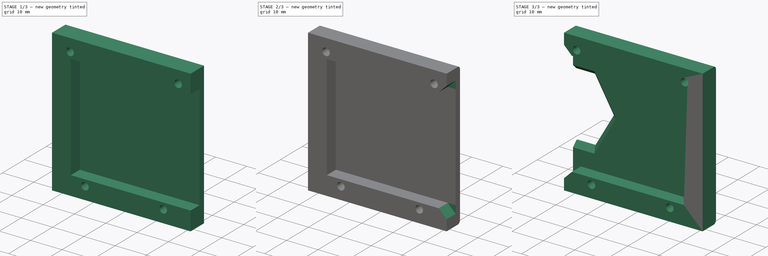
[diagram: build sequence overview — one tinted view per stage of 3, left to right]
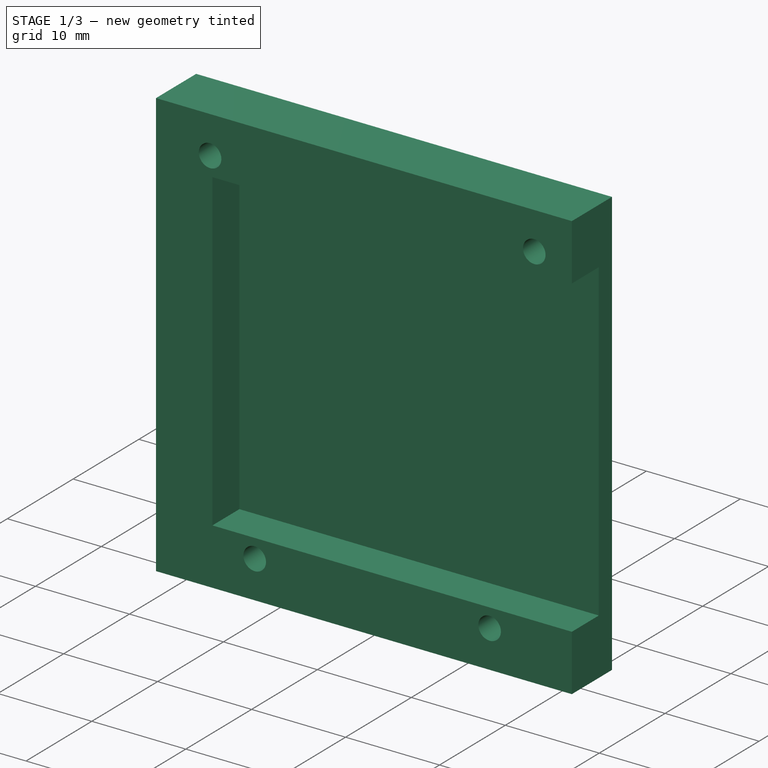
[diagram: stage 1 of 3 — iso view after this stage's code; geometry added in this stage tinted green]
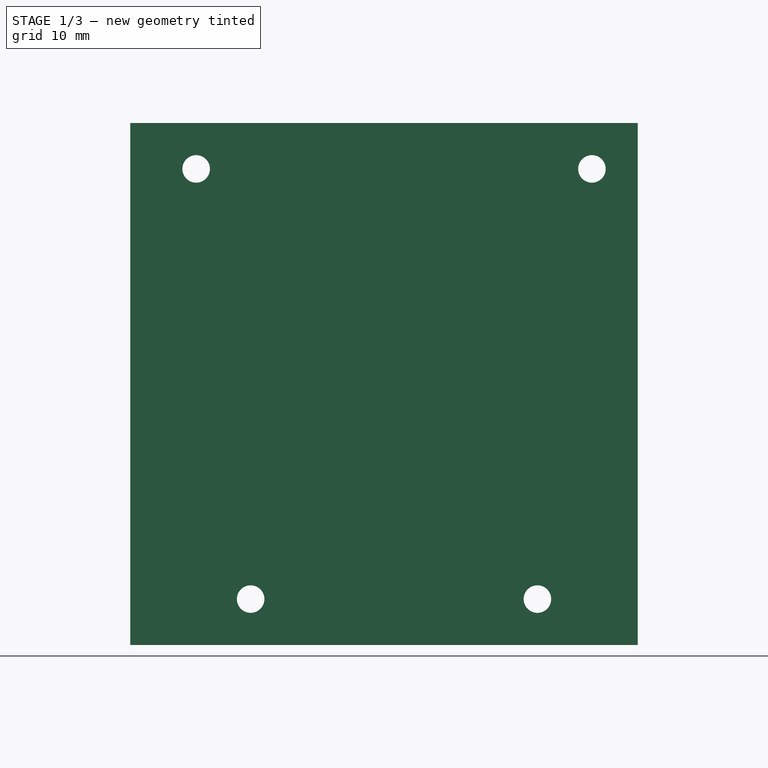
[diagram: stage 1 of 3 — front view after this stage's code; geometry added in this stage tinted green]
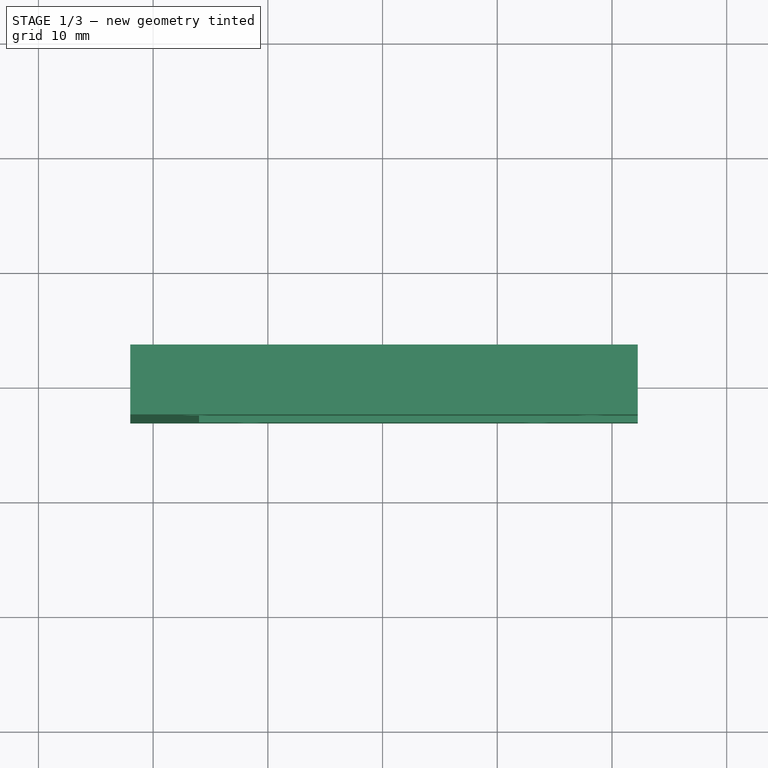
[diagram: stage 1 of 3 — top view after this stage's code; geometry added in this stage tinted green]
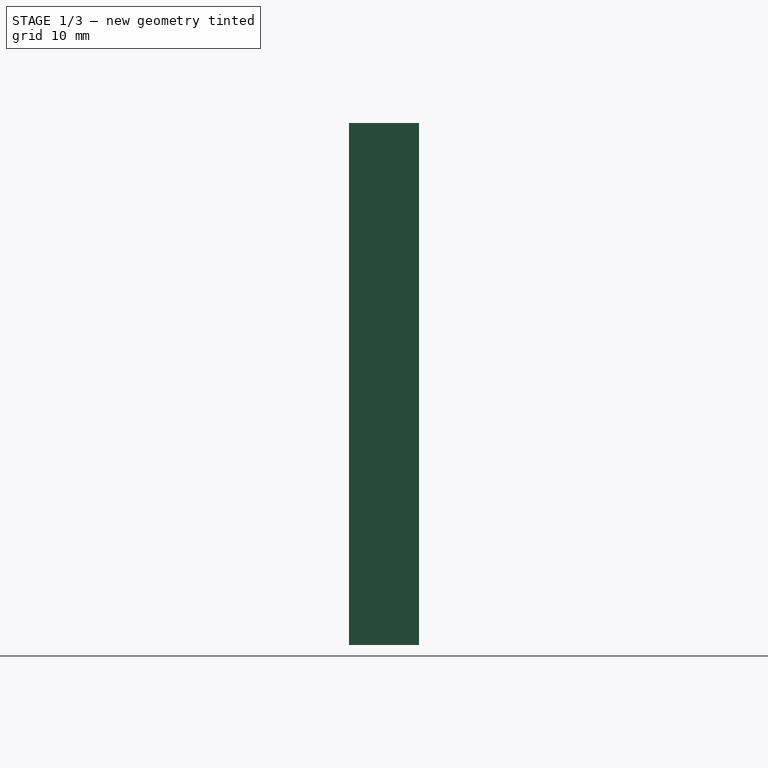
[diagram: stage 1 of 3 — right view after this stage's code; geometry added in this stage tinted green]
FCSTD DOCUMENT  (FreeCAD 1.0R39319 (Git))
Label: token_pocket
License: All rights reserved
LicenseURL: http://en.wikipedia.org/wiki/All_rights_reserved
objects: Sketcher::SketchObject×4, PartDesign::Pad×2, PartDesign::Chamfer×2, PartDesign::Hole×1, PartDesign::Fillet×1, PartDesign::Pocket×1, PartDesign::Body×1, App::Part×1, Part::Mirroring×1, Measure::MeasureDistance×1, App::DocumentObjectGroup×1
note: 31 computed .brp shape members not serialized (recipe doc carries the construction recipe); baked Part::Feature solids carry a one-line shape summary decoded from their .brp

FEATURE [Sketcher::SketchObject] Sketch009
  ArcFitTolerance = 1e-06
  FullyConstrained = true
  MakeInternals = false
  MapMode = 5
  Placement = pos=(0,1,0) rot=(0,0.707107,-0.707107;3.14159rad)
  sketch-geometry (8):
    g0: Circle [constr] CenterX=-33.5 CenterY=54 CenterZ=0 NormalX=0 NormalY=0 NormalZ=1 AngleXU=0 Radius=1
    g1: Circle [constr] CenterX=-8.5 CenterY=54 CenterZ=0 NormalX=0 NormalY=0 NormalZ=1 AngleXU=0 Radius=1
    g2: Circle [constr] CenterX=-38.25 CenterY=16.5 CenterZ=0 NormalX=0 NormalY=0 NormalZ=1 AngleXU=0 Radius=1
    g3: Circle [constr] CenterX=-3.75 CenterY=16.5 CenterZ=0 NormalX=0 NormalY=0 NormalZ=1 AngleXU=0 Radius=1
    g4: LineSegment StartX=-42.25 StartY=58 StartZ=0 EndX=-42.25 EndY=12.5 EndZ=0
    g5: LineSegment StartX=-42.25 StartY=12.5 StartZ=0 EndX=2 EndY=12.5 EndZ=0
    g6: LineSegment StartX=2 StartY=12.5 StartZ=0 EndX=2 EndY=58 EndZ=0
    g7: LineSegment StartX=2 StartY=58 StartZ=0 EndX=-42.25 EndY=58 EndZ=0
  constraints (20):
    c: Diameter(g0) = 2
    c: Coincident(g0,g-4)
    c: Diameter(g1) = 2
    c: Coincident(g1,g-3)
    c: Diameter(g2) = 2
    c: Coincident(g2,g-5)
    c: Diameter(g3) = 2
    c: Coincident(g3,g-6)
    c: Coincident(g4,g5)
    c: Coincident(g5,g6)
    c: Coincident(g6,g7)
    c: Coincident(g7,g4)
    c: Vertical(g4)
    c: Vertical(g6)
    c: Horizontal(g5)
    c: Horizontal(g7)
    c: PointOnObject(g5,g-8)
    c: DistanceY(g4,g2) = 4
    c: DistanceX(g4,g2) = 4
    c: DistanceY(g0,g4) = 4
FEATURE [Sketcher::SketchObject] Sketch010
  ArcFitTolerance = 1e-06
  FullyConstrained = true
  MakeInternals = false
  MapMode = 5
  Placement = pos=(0,1,0) rot=(0,0.707107,-0.707107;3.14159rad)
  sketch-geometry (12):
    g0: Circle [constr] CenterX=-33.5 CenterY=54 CenterZ=0 NormalX=0 NormalY=0 NormalZ=1 AngleXU=0 Radius=1
    g1: Circle [constr] CenterX=-8.5 CenterY=54 CenterZ=0 NormalX=0 NormalY=0 NormalZ=1 AngleXU=0 Radius=1
    g2: Circle [constr] CenterX=-38.25 CenterY=16.5 CenterZ=0 NormalX=0 NormalY=0 NormalZ=1 AngleXU=0 Radius=1
    g3: Circle [constr] CenterX=-3.75 CenterY=16.5 CenterZ=0 NormalX=0 NormalY=0 NormalZ=1 AngleXU=0 Radius=1
    g4: LineSegment StartX=-42.25 StartY=12.5 StartZ=0 EndX=2 EndY=12.5 EndZ=0
    g5: LineSegment StartX=2 StartY=12.5 StartZ=0 EndX=2 EndY=58 EndZ=0
    g6: LineSegment StartX=2 StartY=58 StartZ=0 EndX=-42.25 EndY=58 EndZ=0
    g7: LineSegment StartX=-42.25 StartY=12.5 StartZ=0 EndX=-42.25 EndY=18.5 EndZ=0
    g8: LineSegment StartX=-42.25 StartY=18.5 StartZ=0 EndX=-4 EndY=18.5 EndZ=0
    g9: LineSegment StartX=-4 StartY=18.5 StartZ=0 EndX=-4 EndY=52 EndZ=0
    g10: LineSegment StartX=-4 StartY=52 StartZ=0 EndX=-42.25 EndY=52 EndZ=0
    g11: LineSegment StartX=-42.25 StartY=52 StartZ=0 EndX=-42.25 EndY=58 EndZ=0
  constraints (33):
    c: Diameter(g0) = 2
    c: Coincident(g0,g-4)
    c: Diameter(g1) = 2
    c: Coincident(g1,g-3)
    c: Diameter(g2) = 2
    c: Coincident(g2,g-5)
    c: Diameter(g3) = 2
    c: Coincident(g3,g-6)
    c: Coincident(g4,g5)
    c: Coincident(g5,g6)
    c: Vertical(g5)
    c: Horizontal(g4)
    c: Horizontal(g6)
    c: PointOnObject(g4,g-8)
    c: DistanceY(g4,g2) = 4
    c: DistanceX(g4,g2) = 4
    c: DistanceY(g0,g6) = 4
    c: Coincident(g4,g7)
    c: Vertical(g7)
    c: Coincident(g7,g8)
    c: Horizontal(g8)
    c: Coincident(g8,g9)
    c: Vertical(g9)
    c: Coincident(g9,g10)
    c: Horizontal(g10)
    c: Coincident(g10,g11)
    c: Coincident(g11,g6)
    c: Vertical(g11)
    c: DistanceX(g9,g5) = 6
    c: DistanceY(g9,g9) = 33.5
    c: DistanceY(g4,g7) = 6
    c: DistanceY(g11,g11) = 6
    c: DistanceX(g7,g10) = 0
FEATURE [PartDesign::Pad] Pad  label="pocket"
  Direction = (1e-16,-1,-2e-16)
  Length = 4.1
  Length2 = 10
  Placement = pos=(0,1,0) rot=(0,0.707107,-0.707107;3.14159rad)
  Profile = -> Sketch010
  ReferenceAxis = -> Sketch010 [N_Axis]
  Suppressed = false
  Type = 0
FEATURE [PartDesign::Pad] Pad001  label="plate"
  BaseFeature = -> Pad
  Direction = (0,-1,-2e-16)
  Length = 2
  Length2 = 10
  Placement = pos=(0,1,0) rot=(0,0.707107,-0.707107;3.14159rad)
  Profile = -> Sketch009
  ReferenceAxis = -> Sketch009 [N_Axis]
  Reversed = true
  Suppressed = false
  Type = 0
FEATURE [Sketcher::SketchObject] Sketch011
  ArcFitTolerance = 1e-06
  AttachmentOffset = pos=(0,0,0) rot=(1,0,0;3.14159rad)
  AttachmentSupport = -> [Pad001]
  FullyConstrained = true
  MakeInternals = false
  MapMode = 5
  Placement = pos=(0,3,4e-16) rot=(0,0.707107,-0.707107;3.14159rad)
  sketch-geometry (8):
    g0: Circle CenterX=-33.5 CenterY=54 CenterZ=0 NormalX=0 NormalY=0 NormalZ=1 AngleXU=0 Radius=1
    g1: Circle CenterX=-8.5 CenterY=54 CenterZ=0 NormalX=0 NormalY=0 NormalZ=1 AngleXU=0 Radius=1
    g2: Circle CenterX=-38.25 CenterY=16.5 CenterZ=0 NormalX=0 NormalY=0 NormalZ=1 AngleXU=0 Radius=1
    g3: Circle CenterX=-3.75 CenterY=16.5 CenterZ=0 NormalX=0 NormalY=0 NormalZ=1 AngleXU=0 Radius=1
    g4: LineSegment [constr] StartX=-42.25 StartY=58 StartZ=0 EndX=-42.25 EndY=12.5 EndZ=0
    g5: LineSegment [constr] StartX=-42.25 StartY=12.5 StartZ=0 EndX=2 EndY=12.5 EndZ=0
    g6: LineSegment [constr] StartX=2 StartY=12.5 StartZ=0 EndX=2 EndY=58 EndZ=0
    g7: LineSegment [constr] StartX=2 StartY=58 StartZ=0 EndX=-42.25 EndY=58 EndZ=0
  constraints (20):
    c: Diameter(g0) = 2
    c: Coincident(g0,g-4)
    c: Diameter(g1) = 2
    c: Coincident(g1,g-3)
    c: Diameter(g2) = 2
    c: Coincident(g2,g-5)
    c: Diameter(g3) = 2
    c: Coincident(g3,g-6)
    c: Coincident(g4,g5)
    c: Coincident(g5,g6)
    c: Coincident(g6,g7)
    c: Coincident(g7,g4)
    c: Vertical(g4)
    c: Vertical(g6)
    c: Horizontal(g5)
    c: Horizontal(g7)
    c: PointOnObject(g5,g-8)
    c: DistanceY(g4,g2) = 4
    c: DistanceX(g4,g2) = 4
    c: DistanceY(g0,g4) = 4
FEATURE [PartDesign::Hole] Hole
  BaseFeature = -> Pad001
  CustomThreadClearance = 0
  Depth = 25
  DepthType = 0
  Diameter = 2.4
  DrillForDepth = false
  DrillPoint = 1
  DrillPointAngle = 118
  HoleCutCountersinkAngle = 90
  HoleCutCustomValues = false
  HoleCutDepth = 1.6
  HoleCutDiameter = 4.3
  HoleCutType = 4
  ModelThread = false
  Placement = pos=(0,1,0) rot=(0,0.707107,-0.707107;3.14159rad)
  Profile = -> Sketch011
  Reversed = true
  Suppressed = false
  Tapered = false
  TaperedAngle = 90
  ThreadClass = 0
  ThreadDepth = 25
  ThreadDepthType = 0
  ThreadDirection = 0
  ThreadFit = 0
  ThreadSize = 6
  ThreadType = 1
  Threaded = false
  UseCustomThreadClearance = false
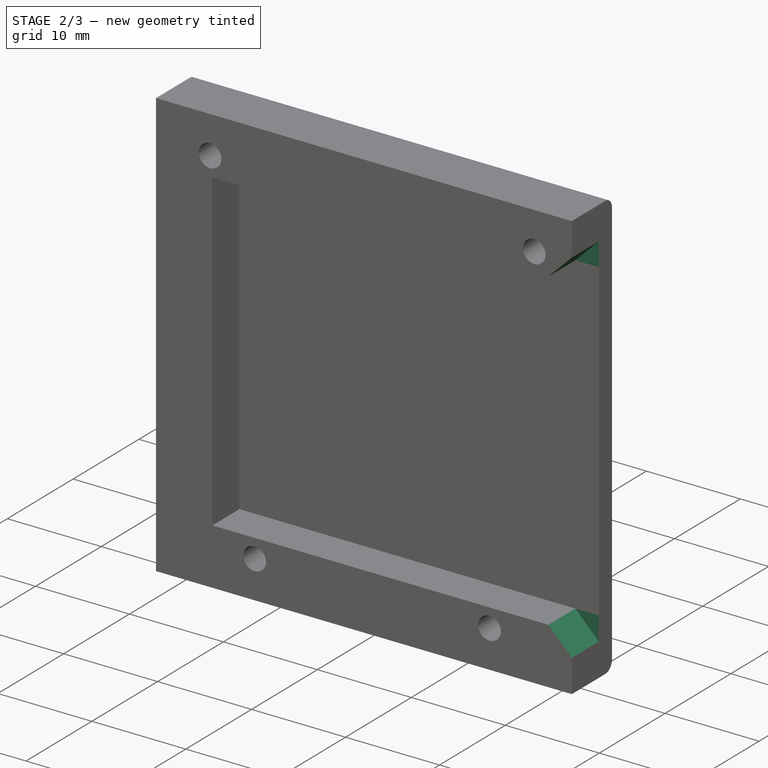
[diagram: stage 2 of 3 — iso view after this stage's code; geometry added in this stage tinted green]
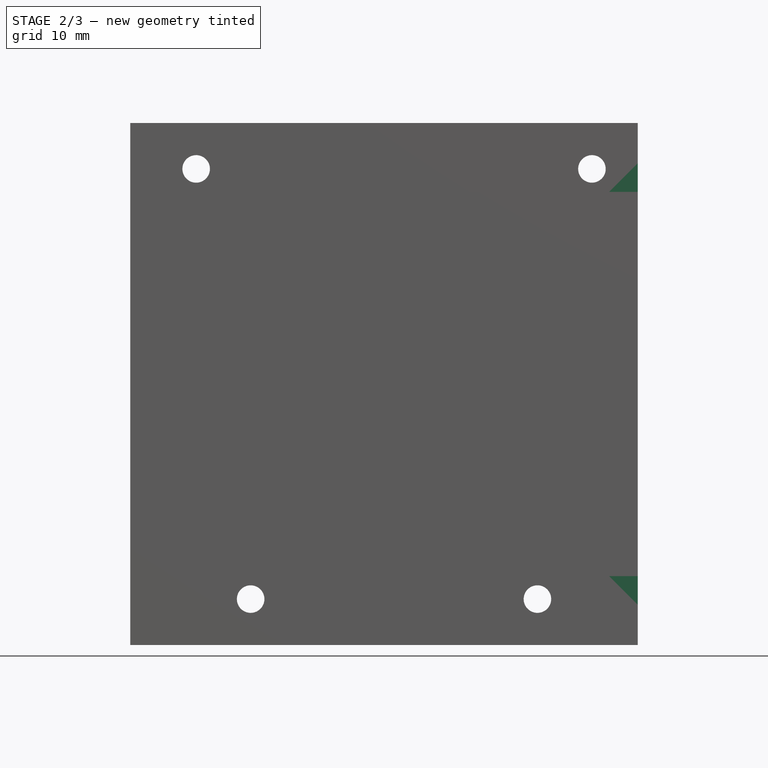
[diagram: stage 2 of 3 — front view after this stage's code; geometry added in this stage tinted green]
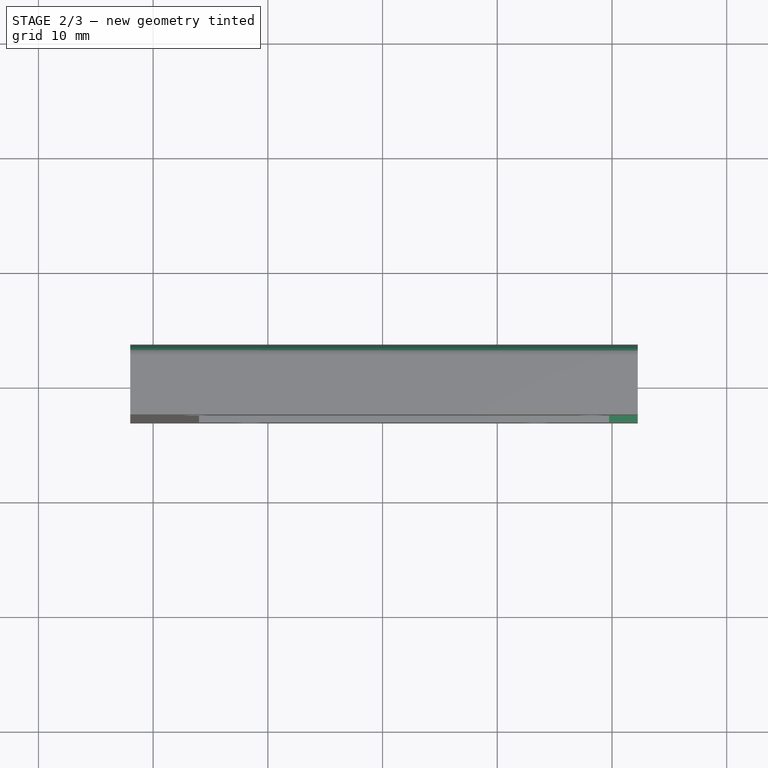
[diagram: stage 2 of 3 — top view after this stage's code; geometry added in this stage tinted green]
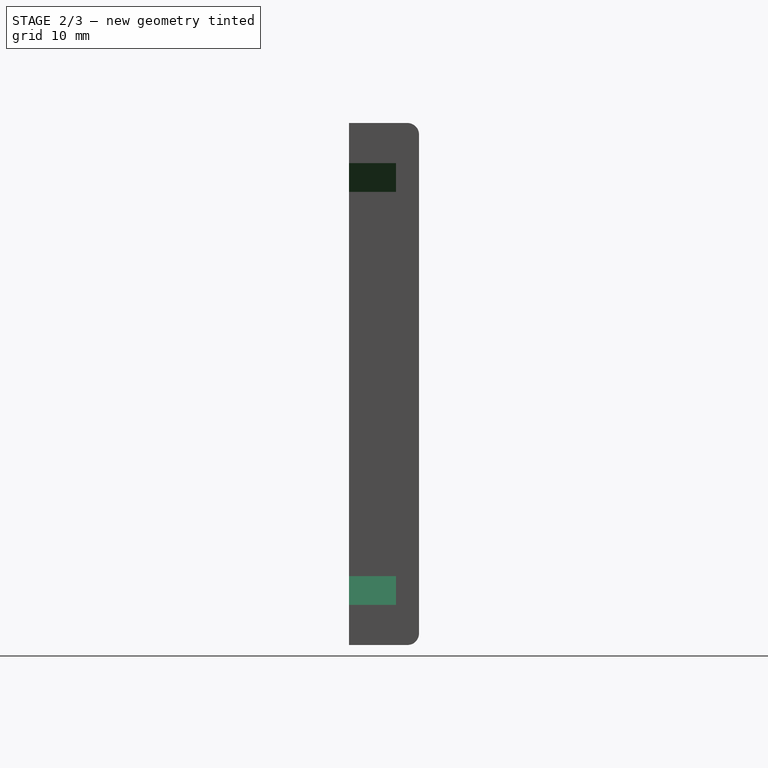
[diagram: stage 2 of 3 — right view after this stage's code; geometry added in this stage tinted green]
FEATURE [PartDesign::Chamfer] Chamfer
  Angle = 45
  Base = -> Hole [Edge5,Edge40]
  BaseFeature = -> Hole
  ChamferType = 0
  FlipDirection = false
  Placement = pos=(0,1,0) rot=(0,0.707107,-0.707107;3.14159rad)
  Size = 2.5
  Size2 = 1
  SupportTransform = false
  Suppressed = false
  UseAllEdges = false
FEATURE [PartDesign::Fillet] Fillet
  Base = -> Chamfer [Edge52,Edge50]
  BaseFeature = -> Chamfer
  Placement = pos=(0,1,0) rot=(0,0.707107,-0.707107;3.14159rad)
  Radius = 1
  SupportTransform = false
  Suppressed = false
  UseAllEdges = false
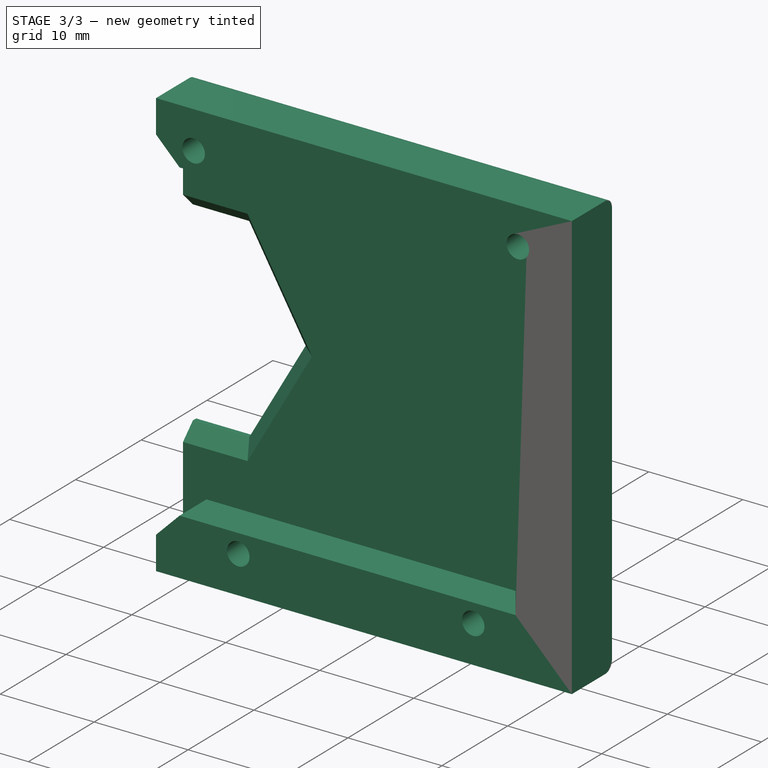
[diagram: stage 3 of 3 — iso view after this stage's code; geometry added in this stage tinted green]
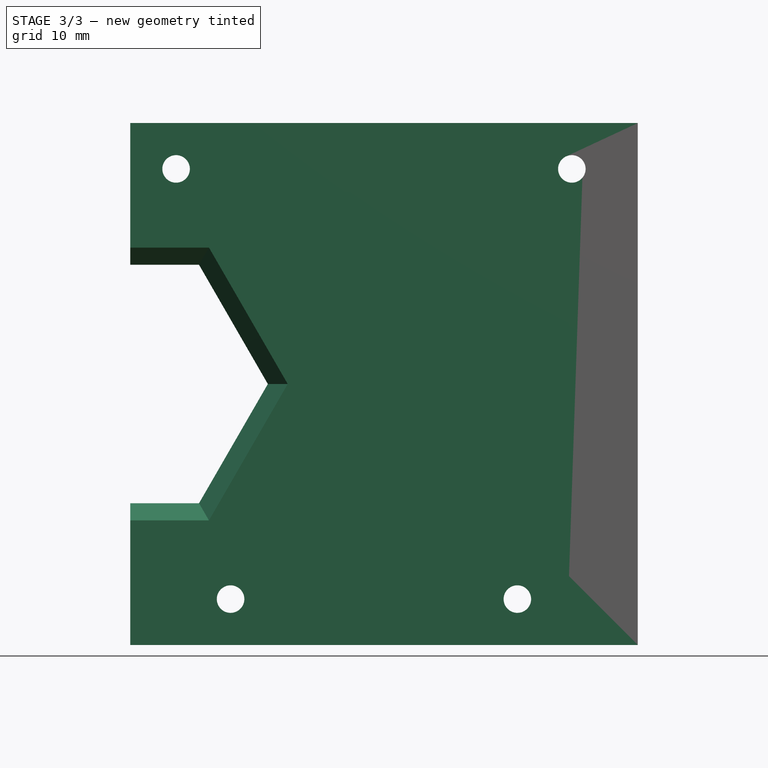
[diagram: stage 3 of 3 — front view after this stage's code; geometry added in this stage tinted green]
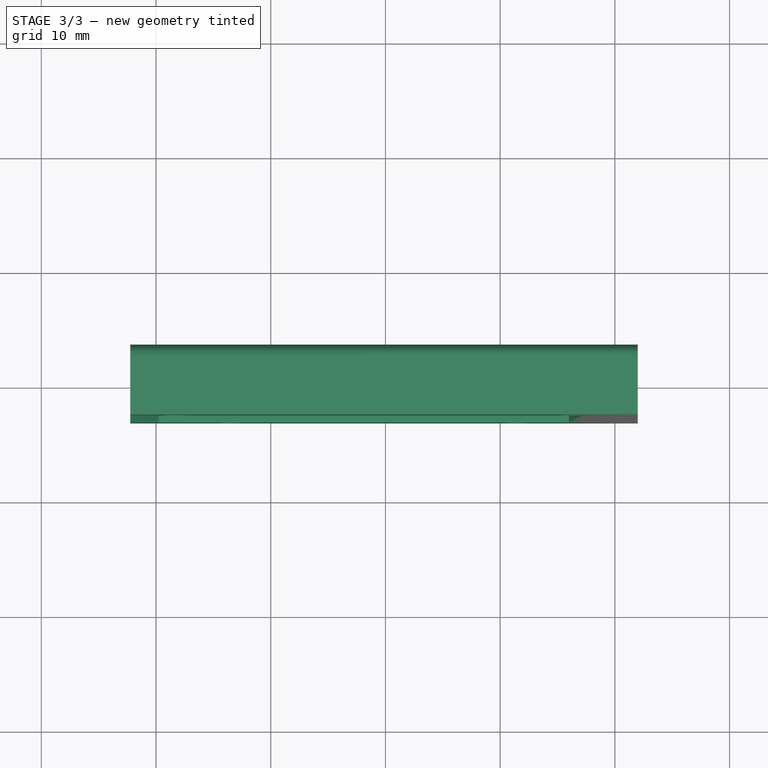
[diagram: stage 3 of 3 — top view after this stage's code; geometry added in this stage tinted green]
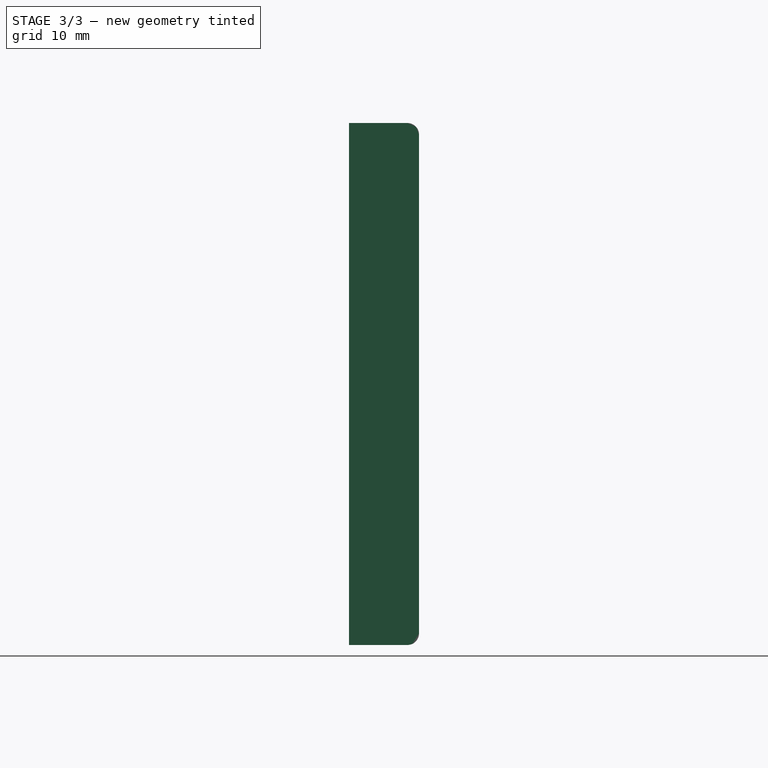
[diagram: stage 3 of 3 — right view after this stage's code; geometry added in this stage tinted green]
FEATURE [Sketcher::SketchObject] Sketch
  ArcFitTolerance = 1e-06
  AttachmentSupport = -> [Fillet]
  ExternalGeometry = -> [Fillet]
  FullyConstrained = false
  MakeInternals = false
  MapMode = 5
  Placement = pos=(0,3,4e-16) rot=(0,0.707107,0.707107;3.14159rad)
  sketch-geometry (7):
    g0: LineSegment StartX=-30.25 StartY=-35.25 StartZ=0 EndX=-36.25 EndY=-24.8577 EndZ=0
    g1: LineSegment StartX=-36.25 StartY=-24.8577 StartZ=0 EndX=-48.25 EndY=-24.8577 EndZ=0
    g2: LineSegment StartX=-48.25 StartY=-24.8577 StartZ=0 EndX=-54.25 EndY=-35.25 EndZ=0
    g3: LineSegment StartX=-54.25 StartY=-35.25 StartZ=0 EndX=-48.25 EndY=-45.6423 EndZ=0
    g4: LineSegment StartX=-48.25 StartY=-45.6423 StartZ=0 EndX=-36.25 EndY=-45.6423 EndZ=0
    g5: LineSegment StartX=-36.25 StartY=-45.6423 StartZ=0 EndX=-30.25 EndY=-35.25 EndZ=0
    g6: Circle [constr] CenterX=-42.25 CenterY=-35.25 CenterZ=0 NormalX=0 NormalY=0 NormalZ=1 AngleXU=0 Radius=12
  constraints (15):
    c: Coincident(g0,g1)
    c: Coincident(g1,g2)
    c: Coincident(g2,g3)
    c: Coincident(g3,g4)
    c: Coincident(g4,g5)
    c: Coincident(g5,g0)
    c: Equal(g0, g1-g5) x5
    c: PointOnObject(g0,g6)
    c: PointOnObject(g1,g6)
    c: PointOnObject(g2,g6)
    c: PointOnObject(g3,g6)
    c: PointOnObject(g4,g6)
    c: PointOnObject(g5,g6)
    c: Radius(g6) = 12
    c: Symmetric(g-3,g-3,g6)
FEATURE [PartDesign::Pocket] Pocket
  BaseFeature = -> Fillet
  Direction = (0,-1,2e-16)
  Length = 5
  Length2 = 5
  Placement = pos=(0,1,0) rot=(0,0.707107,-0.707107;3.14159rad)
  Profile = -> Sketch
  ReferenceAxis = -> Sketch [N_Axis]
  Suppressed = false
  Type = 0
FEATURE [PartDesign::Chamfer] Chamfer001
  Angle = 45
  Base = -> Pocket [Edge19,Edge20,Edge18,Edge21]
  BaseFeature = -> Pocket
  ChamferType = 0
  FlipDirection = false
  Placement = pos=(0,1,0) rot=(0,0.707107,-0.707107;3.14159rad)
  Size = 1.5
  Size2 = 1
  SupportTransform = false
  Suppressed = false
  UseAllEdges = false
FEATURE [PartDesign::Body] Body
  AllowCompound = false
  Group = -> [Sketch009,Sketch010,Pad,Pad001,Sketch011,Hole,Chamfer,Fillet,Sketch,Pocket,Chamfer001]
  Origin = -> Origin001
  Tip = -> Chamfer001
FEATURE [App::Part] Part
  Group = -> [Body]
  Origin = -> Origin
FEATURE [Part::Mirroring] Part__Mirroring  label="Body (Mirror #1)"
  Base = (0,0,0)
  Normal = (1,0,0)
  Source = -> Body
FEATURE [Measure::MeasureDistance] Distance  label="Distance: 45.50 mm"
  Distance = 45.5
  DistanceX = 7.1e-15
  DistanceY = 0
  DistanceZ = 45.5
  Element1 = -> Part__Mirroring [Face31]
  Element2 = -> Part__Mirroring [Face20]
  Position1 = (-42.25,1,-12.5)
  Position2 = (-42.25,1,-58)
FEATURE [App::DocumentObjectGroup] Measurements
  Group = -> [Distance]
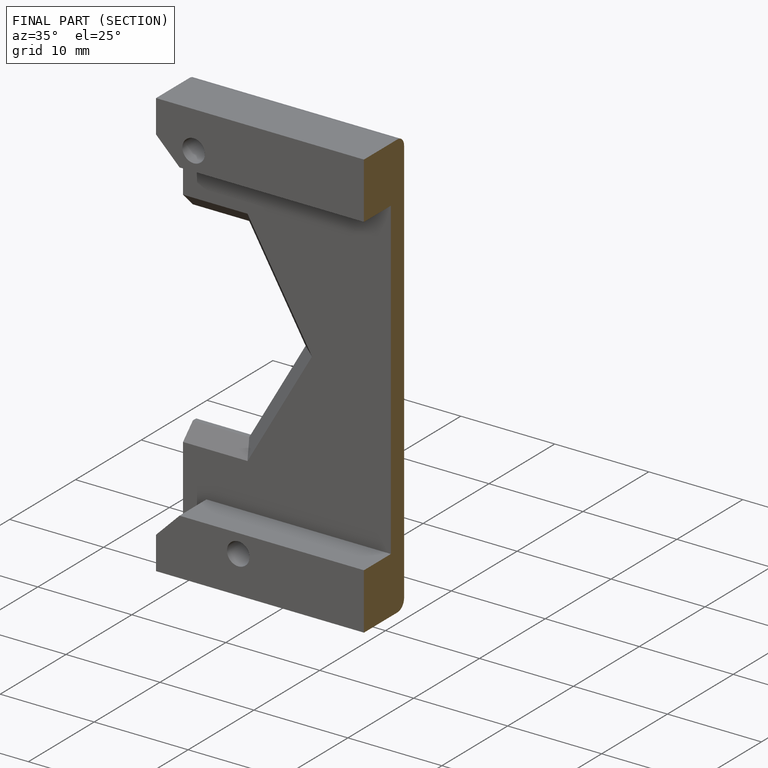
[diagram: finished part — half-section view (interior)]
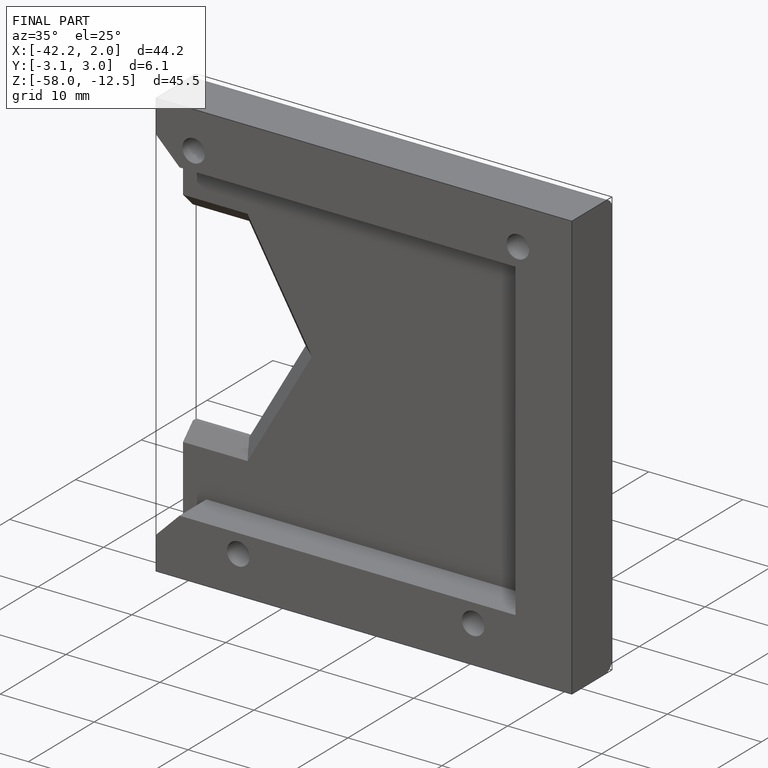
[diagram: finished part — iso view with bounding-box wireframe]
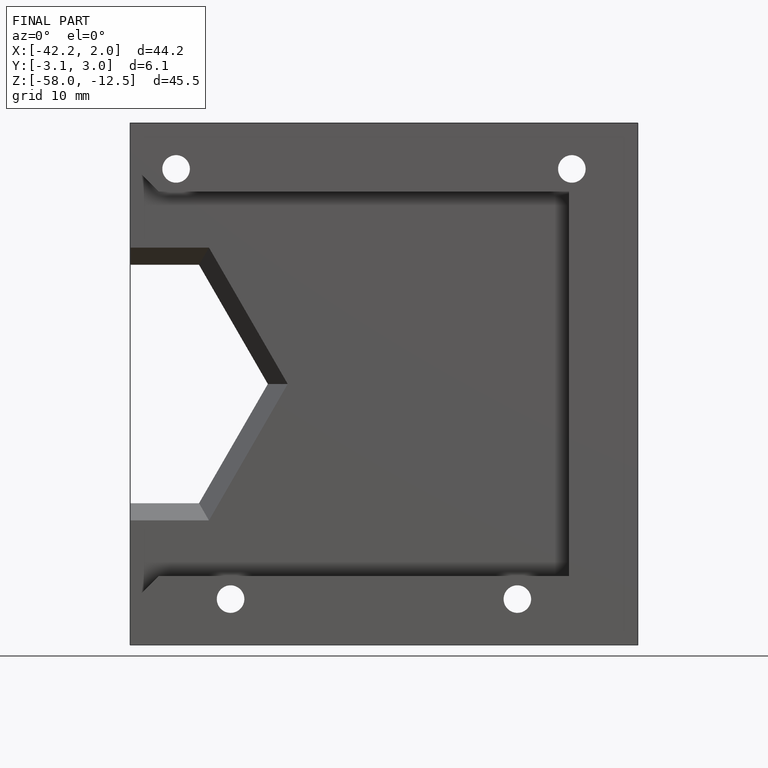
[diagram: finished part — front view with bounding-box wireframe]
